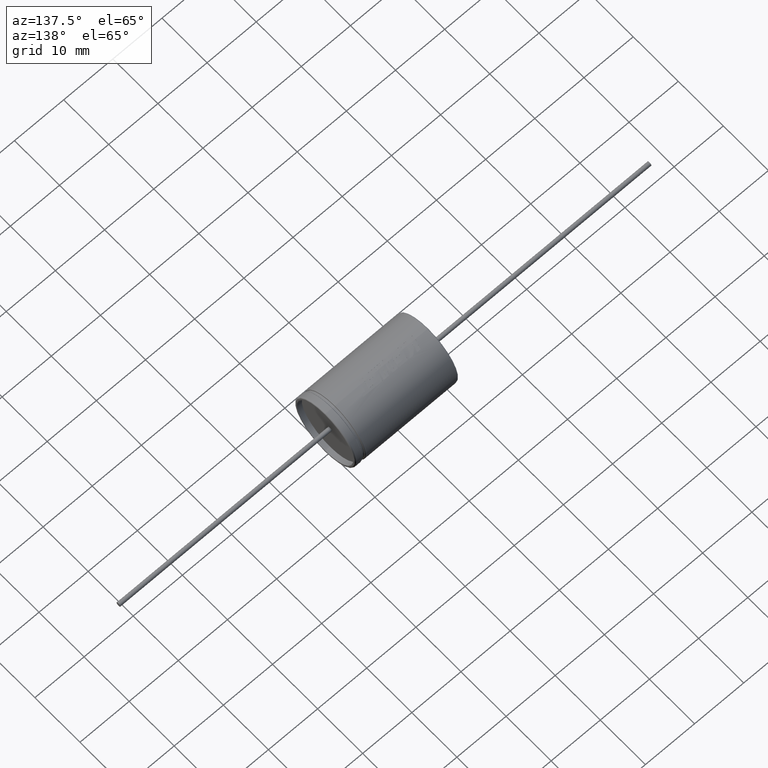
[diagram: clean part render]
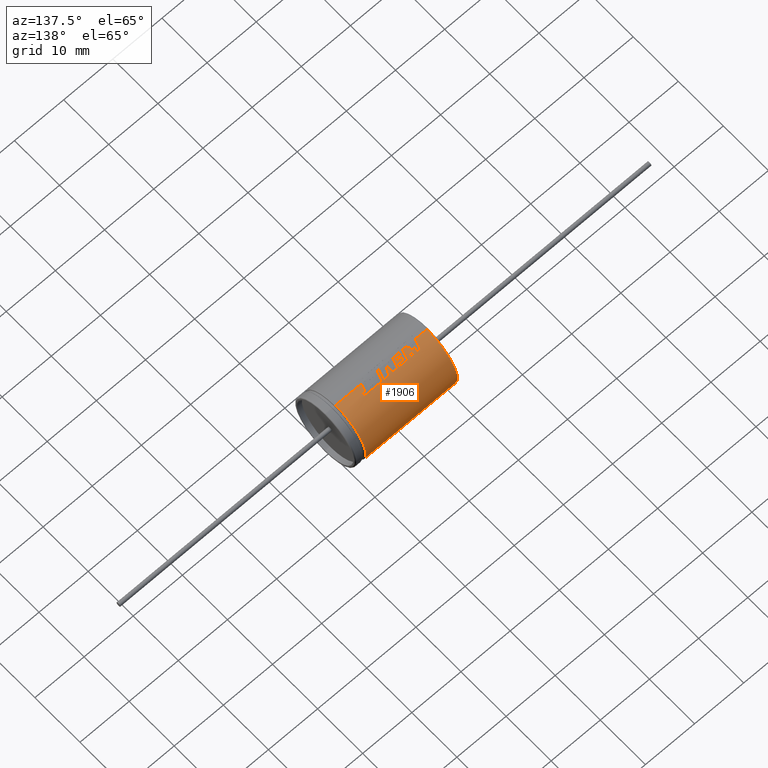
[diagram: same view with one face highlighted and labeled with its STEP entity id]
A machine part, auxiliary view. The second image highlights one B-rep face of the part: STEP entity #1906.
In plain terms, the highlighted cylindrical surface (partial cylindrical patch) has radius 6.75 mm, axis along (-1, -0, -0).
Its self-contained STEP definition (entity closure, byte-faithful):
#6 = DIRECTION ( 'NONE',  ( -1.000000000000000000, 0.0000000000000000000, 0.0000000000000000000 ) ) ;
#10 = CARTESIAN_POINT ( 'NONE',  ( 8.711187493720029100, 0.0000000000000000000, 6.750000000000000000 ) ) ;
#20 = LINE ( 'NONE', #3083, #1112 ) ;
#21 = CARTESIAN_POINT ( 'NONE',  ( 7.773778274860275100, 1.709829298070707300, 6.529853273348416000 ) ) ;
#71 = CARTESIAN_POINT ( 'NONE',  ( 0.2500000000000002200, 8.266365894244632400E-016, -6.750000000000000000 ) ) ;
#84 = DIRECTION ( 'NONE',  ( 0.0000000000000000000, 0.0000000000000000000, -1.000000000000000000 ) ) ;
#90 = EDGE_CURVE ( 'NONE', #1380, #1888, #2674, .T. ) ;
#101 = DIRECTION ( 'NONE',  ( 1.000000000000000000, 0.0000000000000000000, 0.0000000000000000000 ) ) ;
#119 = CARTESIAN_POINT ( 'NONE',  ( 5.970177950344074200, 0.1235678158142156200, 6.749998623335118400 ) ) ;
#132 = DIRECTION ( 'NONE',  ( 1.000000000000000000, 0.0000000000000000000, 0.0000000000000000000 ) ) ;
#152 = CARTESIAN_POINT ( 'NONE',  ( 5.934970038773312400, -3.094374728375643200E-010, 6.749999509999676100 ) ) ;
#218 = CARTESIAN_POINT ( 'NONE',  ( 14.80570776592153900, 1.709829298070707700, 6.529853273348416000 ) ) ;
#232 = B_SPLINE_CURVE_WITH_KNOTS ( 'NONE', 3,
 ( #3673, #4067, #3268, #4456 ),
 .UNSPECIFIED., .F., .F.,
 ( 4, 4 ),
 ( 0.0000000000000000000, 1.000000000000000000 ),
 .UNSPECIFIED. ) ;
#244 = CARTESIAN_POINT ( 'NONE',  ( 3.145739718429844800, 1.709829298070707700, 6.529853273348416000 ) ) ;
#260 = ORIENTED_EDGE ( 'NONE', *, *, #3511, .F. ) ;
#273 = VERTEX_POINT ( 'NONE', #4674 ) ;
#381 = CARTESIAN_POINT ( 'NONE',  ( 7.401614342766223800, 1.260640431870511800, 6.631235608959563900 ) ) ;
#384 = CARTESIAN_POINT ( 'NONE',  ( 4.492146638237773700, 7.379054222907481000E-009, 6.749988029445163700 ) ) ;
#385 = CARTESIAN_POINT ( 'NONE',  ( 10.92132397682916600, 1.709829298070707300, 6.529853273348416000 ) ) ;
#387 = DIRECTION ( 'NONE',  ( -1.000000000000000000, -0.0000000000000000000, -0.0000000000000000000 ) ) ;
#398 = EDGE_CURVE ( 'NONE', #849, #2100, #232, .T. ) ;
#399 = CARTESIAN_POINT ( 'NONE',  ( 2.814542956070161600, 0.5761810244884982800, 6.749670768985733800 ) ) ;
#404 = CARTESIAN_POINT ( 'NONE',  ( 21.00000000000000000, 8.266365894244632400E-016, -6.750000000000000000 ) ) ;
#409 = ORIENTED_EDGE ( 'NONE', *, *, #4316, .F. ) ;
#424 = ORIENTED_EDGE ( 'NONE', *, *, #2171, .F. ) ;
#428 = EDGE_CURVE ( 'NONE', #273, #4451, #4247, .T. ) ;
#433 = CARTESIAN_POINT ( 'NONE',  ( 3.538930942111242500, 0.6955736911496880300, 6.714065626740655500 ) ) ;
#434 = VERTEX_POINT ( 'NONE', #385 ) ;
#438 = CARTESIAN_POINT ( 'NONE',  ( 21.00000000000000000, 0.0000000000000000000, 6.750000000000000000 ) ) ;
#455 = CARTESIAN_POINT ( 'NONE',  ( 4.224495313802124000, 1.377093312771991100, 6.616979539800402300 ) ) ;
#463 = DIRECTION ( 'NONE',  ( -1.000000000000000000, -0.0000000000000000000, -0.0000000000000000000 ) ) ;
#480 = EDGE_CURVE ( 'NONE', #4265, #3480, #2856, .T. ) ;
#552 = AXIS2_PLACEMENT_3D ( 'NONE', #2826, #4335, #4272 ) ;
#559 = EDGE_CURVE ( 'NONE', #1711, #1848, #1693, .T. ) ;
#569 = LINE ( 'NONE', #404, #4356 ) ;
#577 = CARTESIAN_POINT ( 'NONE',  ( 7.532427934271240100, 1.709829298070707700, 6.529853273348416000 ) ) ;
#597 = CARTESIAN_POINT ( 'NONE',  ( 3.834710919933259600, 1.709829298070666400, 6.529853273348427600 ) ) ;
#598 = EDGE_CURVE ( 'NONE', #4451, #2681, #4444, .T. ) ;
#606 = CARTESIAN_POINT ( 'NONE',  ( 14.71618782253709100, 1.407121892397180700, 6.603541944591670500 ) ) ;
#674 = EDGE_CURVE ( 'NONE', #3937, #1020, #1490, .T. ) ;
#677 = ORIENTED_EDGE ( 'NONE', *, *, #1130, .F. ) ;
#682 = ORIENTED_EDGE ( 'NONE', *, *, #834, .F. ) ;
#709 = ORIENTED_EDGE ( 'NONE', *, *, #1143, .T. ) ;
#726 = CARTESIAN_POINT ( 'NONE',  ( 4.610527307575472000, 0.9889710446102997200, 6.687325457481234600 ) ) ;
#728 = CARTESIAN_POINT ( 'NONE',  ( 7.608118555683622800, 1.152292600047412300, 6.675843166401707900 ) ) ;
#736 = CARTESIAN_POINT ( 'NONE',  ( 3.538930942111242500, 0.6955736911496880300, 6.714065626740655500 ) ) ;
#742 = CARTESIAN_POINT ( 'NONE',  ( 4.233994023214352300, 0.6219124879656770000, 6.721288928272042700 ) ) ;
#764 = LINE ( 'NONE', #1431, #3525 ) ;
#778 = LINE ( 'NONE', #2891, #2695 ) ;
#814 = CARTESIAN_POINT ( 'NONE',  ( 3.881717375350309600, 1.037696423185813000, 6.678621890444603100 ) ) ;
#827 = CARTESIAN_POINT ( 'NONE',  ( 5.578950070062960600, 1.152157128400189200, 6.675878639387362600 ) ) ;
#831 = CARTESIAN_POINT ( 'NONE',  ( 10.75550998160453800, 1.152157114677578600, 6.675878642980601200 ) ) ;
#832 = CIRCLE ( 'NONE', #1415, 6.750000000000000000 ) ;
#834 = EDGE_CURVE ( 'NONE', #2029, #3348, #2534, .T. ) ;
#849 = VERTEX_POINT ( 'NONE', #3141 ) ;
#868 = CARTESIAN_POINT ( 'NONE',  ( 6.005385834005072500, 0.2471355415216888700, 6.746606043615953400 ) ) ;
#895 = CARTESIAN_POINT ( 'NONE',  ( 21.00000000000000000, 0.0000000000000000000, 6.750000000000000000 ) ) ;
#901 = B_SPLINE_CURVE_WITH_KNOTS ( 'NONE', 3,
 ( #10, #2236, #3271, #2602 ),
 .UNSPECIFIED., .F., .F.,
 ( 4, 4 ),
 ( 0.0000000000000000000, 1.000000000000000000 ),
 .UNSPECIFIED. ) ;
#918 = EDGE_CURVE ( 'NONE', #4591, #273, #3437, .T. ) ;
#927 = CARTESIAN_POINT ( 'NONE',  ( 12.71760500823164700, 1.709829298070707700, 6.529853273348416000 ) ) ;
#963 = ORIENTED_EDGE ( 'NONE', *, *, #918, .F. ) ;
#964 = ORIENTED_EDGE ( 'NONE', *, *, #2033, .F. ) ;
#974 = ORIENTED_EDGE ( 'NONE', *, *, #4732, .F. ) ;
#984 = CARTESIAN_POINT ( 'NONE',  ( 5.363581895274037900, 1.709829298070707300, 6.529853273348416000 ) ) ;
#1020 = VERTEX_POINT ( 'NONE', #2558 ) ;
#1060 = CARTESIAN_POINT ( 'NONE',  ( 8.997002333856755700, 0.5762776178761770400, 6.750000000000000000 ) ) ;
#1061 = ORIENTED_EDGE ( 'NONE', *, *, #4214, .F. ) ;
#1066 = DIRECTION ( 'NONE',  ( 1.000000000000000000, 0.0000000000000000000, 0.0000000000000000000 ) ) ;
#1112 = VECTOR ( 'NONE', #387, 1000.000000000000000 ) ;
#1113 = CARTESIAN_POINT ( 'NONE',  ( 7.276896142783697600, -7.068100064341374000E-008, 6.749990384737802900 ) ) ;
#1118 = CARTESIAN_POINT ( 'NONE',  ( 7.206777136342198600, 0.8160220341887263200, 6.700493119145671800 ) ) ;
#1130 = EDGE_CURVE ( 'NONE', #2298, #4591, #3129, .T. ) ;
#1138 = ORIENTED_EDGE ( 'NONE', *, *, #2454, .F. ) ;
#1143 = EDGE_CURVE ( 'NONE', #1611, #4525, #1732, .T. ) ;
#1173 = VERTEX_POINT ( 'NONE', #1622 ) ;
#1198 = CARTESIAN_POINT ( 'NONE',  ( 14.00893674567405400, 1.254134721380013400, 6.632469080261819800 ) ) ;
#1211 = CARTESIAN_POINT ( 'NONE',  ( 10.42410111669825800, -4.546704919334922100E-007, 6.749917920589117800 ) ) ;
#1221 = CARTESIAN_POINT ( 'NONE',  ( 6.040593832920111900, 0.3705173747849990800, 6.739823207991618900 ) ) ;
#1237 = LINE ( 'NONE', #927, #3403 ) ;
#1282 = EDGE_CURVE ( 'NONE', #3188, #3878, #2482, .T. ) ;
#1304 = ORIENTED_EDGE ( 'NONE', *, *, #1282, .F. ) ;
#1319 = ORIENTED_EDGE ( 'NONE', *, *, #4063, .F. ) ;
#1357 = B_SPLINE_CURVE_WITH_KNOTS ( 'NONE', 3,
 ( #2067, #3119, #4228, #3499 ),
 .UNSPECIFIED., .F., .F.,
 ( 4, 4 ),
 ( 0.2855566641791651400, 1.000000000000000000 ),
 .UNSPECIFIED. ) ;
#1380 = VERTEX_POINT ( 'NONE', #577 ) ;
#1384 = LINE ( 'NONE', #4538, #4199 ) ;
#1396 = CARTESIAN_POINT ( 'NONE',  ( 7.401614342766223800, 1.260640431870511800, 6.631235608959563900 ) ) ;
#1415 = AXIS2_PLACEMENT_3D ( 'NONE', #2307, #101, #84 ) ;
#1419 = ORIENTED_EDGE ( 'NONE', *, *, #3118, .F. ) ;
#1431 = CARTESIAN_POINT ( 'NONE',  ( 10.62981125708291300, 1.709829298070707700, 6.529853273348416000 ) ) ;
#1490 = LINE ( 'NONE', #4005, #3301 ) ;
#1495 = VECTOR ( 'NONE', #2790, 1000.000000000000000 ) ;
#1501 = CARTESIAN_POINT ( 'NONE',  ( 10.13280915743032500, -4.543329897994637400E-007, 6.749917921406754400 ) ) ;
#1523 = CARTESIAN_POINT ( 'NONE',  ( 4.233994023214352300, 0.6219124879656770000, 6.721288928272042700 ) ) ;
#1578 = EDGE_CURVE ( 'NONE', #3773, #2606, #2132, .T. ) ;
#1602 = DIRECTION ( 'NONE',  ( 0.0000000000000000000, 0.0000000000000000000, -1.000000000000000000 ) ) ;
#1607 = CARTESIAN_POINT ( 'NONE',  ( 10.92132397682916600, 1.709829298070707300, 6.529853273348416000 ) ) ;
#1608 = ORIENTED_EDGE ( 'NONE', *, *, #1733, .T. ) ;
#1611 = VERTEX_POINT ( 'NONE', #4371 ) ;
#1622 = CARTESIAN_POINT ( 'NONE',  ( 5.247397564089324900, -4.550000637449569600E-007, 6.749917919790694200 ) ) ;
#1630 = CARTESIAN_POINT ( 'NONE',  ( 4.567281747041185700, 1.709829298070591400, 6.529853273348447100 ) ) ;
#1648 = ORIENTED_EDGE ( 'NONE', *, *, #398, .F. ) ;
#1661 = EDGE_CURVE ( 'NONE', #2100, #2570, #2700, .T. ) ;
#1667 = ORIENTED_EDGE ( 'NONE', *, *, #2275, .F. ) ;
#1687 = B_SPLINE_CURVE_WITH_KNOTS ( 'NONE', 3,
 ( #4537, #2692, #3457, #4213 ),
 .UNSPECIFIED., .F., .F.,
 ( 4, 4 ),
 ( 0.5259698779780682700, 1.000000000000000000 ),
 .UNSPECIFIED. ) ;
#1693 = B_SPLINE_CURVE_WITH_KNOTS ( 'NONE', 3,
 ( #742, #726, #4395, #2556 ),
 .UNSPECIFIED., .F., .F.,
 ( 4, 4 ),
 ( 0.0000000000000000000, 1.000000000000000000 ),
 .UNSPECIFIED. ) ;
#1711 = VERTEX_POINT ( 'NONE', #1523 ) ;
#1732 = CIRCLE ( 'NONE', #4689, 6.750000000000000000 ) ;
#1733 = EDGE_CURVE ( 'NONE', #4525, #4255, #569, .T. ) ;
#1737 = CARTESIAN_POINT ( 'NONE',  ( 9.568548044013480700, 1.709829298070707300, 6.529853273348416000 ) ) ;
#1759 = VERTEX_POINT ( 'NONE', #3726 ) ;
#1777 = VERTEX_POINT ( 'NONE', #3001 ) ;
#1783 = ORIENTED_EDGE ( 'NONE', *, *, #598, .F. ) ;
#1784 = VERTEX_POINT ( 'NONE', #384 ) ;
#1826 = VERTEX_POINT ( 'NONE', #2179 ) ;
#1848 = VERTEX_POINT ( 'NONE', #984 ) ;
#1888 = VERTEX_POINT ( 'NONE', #3207 ) ;
#1897 = CARTESIAN_POINT ( 'NONE',  ( 7.445218899960960500, 1.411464996591472100, 6.602562891593042800 ) ) ;
#1903 = ORIENTED_EDGE ( 'NONE', *, *, #428, .F. ) ;
#1904 = EDGE_CURVE ( 'NONE', #2570, #1777, #3824, .T. ) ;
#1906 = ADVANCED_FACE ( 'NONE', ( #2850 ), #4575, .T. ) ;
#1915 = CARTESIAN_POINT ( 'NONE',  ( 4.567281747041185700, 1.709829298070591400, 6.529853273348447100 ) ) ;
#1929 = CARTESIAN_POINT ( 'NONE',  ( 5.744835927141265200, 1.709829298070707300, 6.529853273348416000 ) ) ;
#1951 = CARTESIAN_POINT ( 'NONE',  ( 14.67142780739490600, 1.254083042955793400, 6.632478851935431400 ) ) ;
#1955 = CARTESIAN_POINT ( 'NONE',  ( 5.363581895274027300, 1.709829298070707700, 6.529853273348416000 ) ) ;
#1963 = CARTESIAN_POINT ( 'NONE',  ( 5.247397564089324900, -4.550000637449569600E-007, 6.749917919790694200 ) ) ;
#1990 = DIRECTION ( 'NONE',  ( -1.000000000000000000, -1.459581203750584300E-013, 3.812338965020182800E-014 ) ) ;
#1999 = CARTESIAN_POINT ( 'NONE',  ( 7.276896142783697600, -7.068100064341374000E-008, 6.749990384737802900 ) ) ;
#2029 = VERTEX_POINT ( 'NONE', #1951 ) ;
#2033 = EDGE_CURVE ( 'NONE', #4619, #849, #778, .T. ) ;
#2046 = CARTESIAN_POINT ( 'NONE',  ( 7.773778274860275100, 1.709829298070707300, 6.529853273348416000 ) ) ;
#2067 = CARTESIAN_POINT ( 'NONE',  ( 10.13280915743032500, -4.543329897994637400E-007, 6.749917921406754400 ) ) ;
#2077 = CARTESIAN_POINT ( 'NONE',  ( 3.637525746562474200, 1.037698727520219000, 6.678621651716762900 ) ) ;
#2083 = B_SPLINE_CURVE_WITH_KNOTS ( 'NONE', 3,
 ( #4716, #2884, #1060, #3622 ),
 .UNSPECIFIED., .F., .F.,
 ( 4, 4 ),
 ( 0.0000000000000000000, 1.000000000000000000 ),
 .UNSPECIFIED. ) ;
#2100 = VERTEX_POINT ( 'NONE', #4113 ) ;
#2132 = B_SPLINE_CURVE_WITH_KNOTS ( 'NONE', 3,
 ( #3614, #4767, #3672, #3267 ),
 .UNSPECIFIED., .F., .F.,
 ( 4, 4 ),
 ( 0.3539128224673851500, 1.000000000000000000 ),
 .UNSPECIFIED. ) ;
#2155 = CARTESIAN_POINT ( 'NONE',  ( 14.80570776592153900, 1.709829298070707700, 6.529853273348416000 ) ) ;
#2171 = EDGE_CURVE ( 'NONE', #434, #4265, #4604, .T. ) ;
#2172 = CARTESIAN_POINT ( 'NONE',  ( 18.87500000000000000, 8.266365894244632400E-016, -6.750000000000000000 ) ) ;
#2179 = CARTESIAN_POINT ( 'NONE',  ( 12.71760500823164700, 1.709829298070707700, 6.529853273348416000 ) ) ;
#2197 = CARTESIAN_POINT ( 'NONE',  ( 6.040593832920111900, 0.3705173747849990800, 6.739823207991618900 ) ) ;
#2221 = ORIENTED_EDGE ( 'NONE', *, *, #1904, .F. ) ;
#2236 = CARTESIAN_POINT ( 'NONE',  ( 8.742209427912474200, 0.5762900747070928100, 6.750000000000000000 ) ) ;
#2258 = CARTESIAN_POINT ( 'NONE',  ( 8.804242170828771900, 1.709829298070707700, 6.529853273348416000 ) ) ;
#2275 = EDGE_CURVE ( 'NONE', #1848, #2298, #2304, .T. ) ;
#2298 = VERTEX_POINT ( 'NONE', #1630 ) ;
#2304 = LINE ( 'NONE', #1955, #3128 ) ;
#2307 = CARTESIAN_POINT ( 'NONE',  ( 0.2500000000000002200, 0.0000000000000000000, 0.0000000000000000000 ) ) ;
#2316 = VECTOR ( 'NONE', #4547, 1000.000000000000000 ) ;
#2337 = DIRECTION ( 'NONE',  ( -1.000000000000000000, -0.0000000000000000000, -0.0000000000000000000 ) ) ;
#2378 = CARTESIAN_POINT ( 'NONE',  ( 7.532427934271240100, 1.709829298070707700, 6.529853273348416000 ) ) ;
#2389 = CARTESIAN_POINT ( 'NONE',  ( 13.64635653993422100, -1.344964071327617600E-007, 6.749953841861212400 ) ) ;
#2450 = CARTESIAN_POINT ( 'NONE',  ( 14.76094775077935500, 1.559158447204338300, 6.569306140724172000 ) ) ;
#2454 = EDGE_CURVE ( 'NONE', #1020, #4619, #2495, .T. ) ;
#2472 = ORIENTED_EDGE ( 'NONE', *, *, #4760, .T. ) ;
#2480 = B_SPLINE_CURVE_WITH_KNOTS ( 'NONE', 3,
 ( #1929, #827, #4149, #1963 ),
 .UNSPECIFIED., .F., .F.,
 ( 4, 4 ),
 ( 0.0000000000000000000, 0.7144433323837604500 ),
 .UNSPECIFIED. ) ;
#2482 = LINE ( 'NONE', #4617, #1495 ) ;
#2489 = CARTESIAN_POINT ( 'NONE',  ( 6.168214336758524000, 0.8160220341887262100, 6.700493119145671800 ) ) ;
#2495 = B_SPLINE_CURVE_WITH_KNOTS ( 'NONE', 3,
 ( #152, #119, #868, #1221 ),
 .UNSPECIFIED., .F., .F.,
 ( 4, 4 ),
 ( 0.3835877984435602800, 1.000000000000000000 ),
 .UNSPECIFIED. ) ;
#2508 = ORIENTED_EDGE ( 'NONE', *, *, #90, .F. ) ;
#2521 = VECTOR ( 'NONE', #6, 1000.000000000000000 ) ;
#2534 = B_SPLINE_CURVE_WITH_KNOTS ( 'NONE', 3,
 ( #4550, #606, #2450, #218 ),
 .UNSPECIFIED., .F., .F.,
 ( 4, 4 ),
 ( 0.0000000000000000000, 1.000000000000000000 ),
 .UNSPECIFIED. ) ;
#2556 = CARTESIAN_POINT ( 'NONE',  ( 5.363581895274037900, 1.709829298070707300, 6.529853273348416000 ) ) ;
#2558 = CARTESIAN_POINT ( 'NONE',  ( 5.934970038773312400, -3.094374728375643200E-010, 6.749999509999676100 ) ) ;
#2570 = VERTEX_POINT ( 'NONE', #4486 ) ;
#2588 = CARTESIAN_POINT ( 'NONE',  ( 2.648953121698235200, -4.540036335704745300E-007, 6.749917922204657500 ) ) ;
#2602 = CARTESIAN_POINT ( 'NONE',  ( 8.804242170828771900, 1.709829298070707700, 6.529853273348416000 ) ) ;
#2606 = VERTEX_POINT ( 'NONE', #1198 ) ;
#2618 = CARTESIAN_POINT ( 'NONE',  ( 10.42410111669825800, -4.546704919334922100E-007, 6.749917920589117800 ) ) ;
#2667 = CARTESIAN_POINT ( 'NONE',  ( 6.299175075160477800, 1.260640431870512200, 6.631235608959563900 ) ) ;
#2674 = LINE ( 'NONE', #2378, #4551 ) ;
#2681 = VERTEX_POINT ( 'NONE', #3095 ) ;
#2692 = CARTESIAN_POINT ( 'NONE',  ( 4.406097390671053700, 0.2075945950099105400, 6.749977637111591400 ) ) ;
#2695 = VECTOR ( 'NONE', #1066, 1000.000000000000000 ) ;
#2700 = LINE ( 'NONE', #1118, #2521 ) ;
#2741 = VECTOR ( 'NONE', #132, 1000.000000000000000 ) ;
#2752 = DIRECTION ( 'NONE',  ( -1.000000000000000000, -0.0000000000000000000, -0.0000000000000000000 ) ) ;
#2762 = B_SPLINE_CURVE_WITH_KNOTS ( 'NONE', 3,
 ( #21, #728, #3279, #1113 ),
 .UNSPECIFIED., .F., .F.,
 ( 4, 4 ),
 ( 0.0000000000000000000, 0.8822775555313534500 ),
 .UNSPECIFIED. ) ;
#2764 = DIRECTION ( 'NONE',  ( -1.000000000000000000, 0.0000000000000000000, 0.0000000000000000000 ) ) ;
#2790 = DIRECTION ( 'NONE',  ( -1.000000000000000000, 0.0000000000000000000, 0.0000000000000000000 ) ) ;
#2807 = CARTESIAN_POINT ( 'NONE',  ( 3.736116115482027900, 1.377091071661183100, 6.616980126630885200 ) ) ;
#2826 = CARTESIAN_POINT ( 'NONE',  ( 21.00000000000000000, 0.0000000000000000000, 0.0000000000000000000 ) ) ;
#2835 = ORIENTED_EDGE ( 'NONE', *, *, #3309, .F. ) ;
#2850 = FACE_OUTER_BOUND ( 'NONE', #3578, .T. ) ;
#2856 = LINE ( 'NONE', #438, #3718 ) ;
#2873 = EDGE_CURVE ( 'NONE', #3878, #3937, #2762, .T. ) ;
#2884 = CARTESIAN_POINT ( 'NONE',  ( 9.282733203876754000, 1.152346588523125400, 6.675829029625021800 ) ) ;
#2886 = LINE ( 'NONE', #895, #3170 ) ;
#2890 = ORIENTED_EDGE ( 'NONE', *, *, #2984, .F. ) ;
#2891 = CARTESIAN_POINT ( 'NONE',  ( 6.040593832920111900, 0.3705173747849990800, 6.739823207991618900 ) ) ;
#2925 = EDGE_CURVE ( 'NONE', #2606, #2029, #4462, .T. ) ;
#2984 = EDGE_CURVE ( 'NONE', #3348, #1826, #1384, .T. ) ;
#3001 = CARTESIAN_POINT ( 'NONE',  ( 6.299175075160477800, 1.260640431870512200, 6.631235608959563900 ) ) ;
#3010 = ORIENTED_EDGE ( 'NONE', *, *, #3790, .F. ) ;
#3044 = VERTEX_POINT ( 'NONE', #1737 ) ;
#3051 = ORIENTED_EDGE ( 'NONE', *, *, #1661, .F. ) ;
#3083 = CARTESIAN_POINT ( 'NONE',  ( 21.00000000000000000, 0.0000000000000000000, 6.750000000000000000 ) ) ;
#3095 = CARTESIAN_POINT ( 'NONE',  ( 2.648953121698235200, -4.540036335704745300E-007, 6.749917922204657500 ) ) ;
#3118 = EDGE_CURVE ( 'NONE', #3044, #4539, #2083, .T. ) ;
#3119 = CARTESIAN_POINT ( 'NONE',  ( 10.29847082395375000, 0.5761810251984663700, 6.749670765847389100 ) ) ;
#3128 = VECTOR ( 'NONE', #1990, 1000.000000000000000 ) ;
#3129 = B_SPLINE_CURVE_WITH_KNOTS ( 'NONE', 3,
 ( #1915, #455, #814, #433 ),
 .UNSPECIFIED., .F., .F.,
 ( 4, 4 ),
 ( 0.0000000000000000000, 1.000000000000000000 ),
 .UNSPECIFIED. ) ;
#3141 = CARTESIAN_POINT ( 'NONE',  ( 7.079009485606810900, 0.3705173747849989700, 6.739823207991618900 ) ) ;
#3170 = VECTOR ( 'NONE', #2337, 1000.000000000000000 ) ;
#3179 = EDGE_CURVE ( 'NONE', #2681, #3428, #3902, .T. ) ;
#3188 = VERTEX_POINT ( 'NONE', #2258 ) ;
#3207 = CARTESIAN_POINT ( 'NONE',  ( 5.744835927141265200, 1.709829298070707300, 6.529853273348416000 ) ) ;
#3231 = ORIENTED_EDGE ( 'NONE', *, *, #3943, .F. ) ;
#3237 = ORIENTED_EDGE ( 'NONE', *, *, #2873, .F. ) ;
#3253 = CARTESIAN_POINT ( 'NONE',  ( 8.711187493720029100, 0.0000000000000000000, 6.750000000000000000 ) ) ;
#3264 = CARTESIAN_POINT ( 'NONE',  ( 0.2500000000000002200, 0.0000000000000000000, 6.750000000000000000 ) ) ;
#3267 = CARTESIAN_POINT ( 'NONE',  ( 14.00893674567405400, 1.254134721380013400, 6.632469080261819800 ) ) ;
#3268 = CARTESIAN_POINT ( 'NONE',  ( 7.164187896244350800, 0.6680091493047820600, 6.718518923106878500 ) ) ;
#3271 = CARTESIAN_POINT ( 'NONE',  ( 8.773220236636332100, 1.152334537963401800, 6.675832185040497400 ) ) ;
#3272 = ORIENTED_EDGE ( 'NONE', *, *, #3179, .F. ) ;
#3279 = CARTESIAN_POINT ( 'NONE',  ( 7.442537563131713400, 0.5762608005597487100, 6.749897390039211400 ) ) ;
#3301 = VECTOR ( 'NONE', #3646, 1000.000000000000000 ) ;
#3308 = ORIENTED_EDGE ( 'NONE', *, *, #674, .F. ) ;
#3309 = EDGE_CURVE ( 'NONE', #3480, #1759, #1357, .T. ) ;
#3348 = VERTEX_POINT ( 'NONE', #2155 ) ;
#3403 = VECTOR ( 'NONE', #3487, 1000.000000000000000 ) ;
#3428 = VERTEX_POINT ( 'NONE', #3264 ) ;
#3437 = B_SPLINE_CURVE_WITH_KNOTS ( 'NONE', 3,
 ( #4282, #2077, #2807, #597 ),
 .UNSPECIFIED., .F., .F.,
 ( 4, 4 ),
 ( 0.0000000000000000000, 1.000000000000000000 ),
 .UNSPECIFIED. ) ;
#3457 = CARTESIAN_POINT ( 'NONE',  ( 4.320047898064379900, 0.4151896927812964700, 6.740416730877217200 ) ) ;
#3480 = VERTEX_POINT ( 'NONE', #1501 ) ;
#3487 = DIRECTION ( 'NONE',  ( -1.000000000000000000, 0.0000000000000000000, 0.0000000000000000000 ) ) ;
#3499 = CARTESIAN_POINT ( 'NONE',  ( 10.62981125708291700, 1.709829298070707700, 6.529853273348416000 ) ) ;
#3511 = EDGE_CURVE ( 'NONE', #4562, #1380, #4054, .T. ) ;
#3525 = VECTOR ( 'NONE', #4695, 1000.000000000000000 ) ;
#3578 = EDGE_LOOP ( 'NONE', ( #709, #1608, #2472, #3272, #1783, #1903, #963, #677, #1667, #3832, #3231, #3958, #1061, #2508, #260, #3649, #2221, #3051, #1648, #964, #1138, #3308, #3237, #1304, #974, #1419, #1319, #2835, #4622, #424, #409, #2890, #682, #4522, #4494, #3010 ) ) ;
#3614 = CARTESIAN_POINT ( 'NONE',  ( 13.64635653993422100, -1.344964071327617600E-007, 6.749953841861212400 ) ) ;
#3622 = CARTESIAN_POINT ( 'NONE',  ( 8.711187493720029100, 0.0000000000000000000, 6.750000000000000000 ) ) ;
#3646 = DIRECTION ( 'NONE',  ( -1.000000000000000000, -0.0000000000000000000, -0.0000000000000000000 ) ) ;
#3649 = ORIENTED_EDGE ( 'NONE', *, *, #4770, .F. ) ;
#3672 = CARTESIAN_POINT ( 'NONE',  ( 13.88805318756099200, 0.8408881826312197800, 6.710609939489845700 ) ) ;
#3673 = CARTESIAN_POINT ( 'NONE',  ( 7.079009485606810900, 0.3705173747849989700, 6.739823207991618900 ) ) ;
#3699 = CARTESIAN_POINT ( 'NONE',  ( 7.488823377076506900, 1.561310630401313800, 6.568742595766734000 ) ) ;
#3718 = VECTOR ( 'NONE', #4491, 1000.000000000000000 ) ;
#3725 = VECTOR ( 'NONE', #4049, 1000.000000000000000 ) ;
#3726 = CARTESIAN_POINT ( 'NONE',  ( 10.62981125708291700, 1.709829298070707700, 6.529853273348416000 ) ) ;
#3744 = CARTESIAN_POINT ( 'NONE',  ( 14.67142780739490600, 1.254083042955793400, 6.632478851935431400 ) ) ;
#3754 = DIRECTION ( 'NONE',  ( -1.000000000000000000, 0.0000000000000000000, 0.0000000000000000000 ) ) ;
#3773 = VERTEX_POINT ( 'NONE', #2389 ) ;
#3790 = EDGE_CURVE ( 'NONE', #1611, #3773, #20, .T. ) ;
#3803 = CARTESIAN_POINT ( 'NONE',  ( 10.58983636784009400, 0.5761810259259980700, 6.749670762631432700 ) ) ;
#3824 = B_SPLINE_CURVE_WITH_KNOTS ( 'NONE', 3,
 ( #2489, #3907, #4639, #4313 ),
 .UNSPECIFIED., .F., .F.,
 ( 4, 4 ),
 ( 0.0000000000000000000, 1.000000000000000000 ),
 .UNSPECIFIED. ) ;
#3832 = ORIENTED_EDGE ( 'NONE', *, *, #559, .F. ) ;
#3878 = VERTEX_POINT ( 'NONE', #2046 ) ;
#3902 = LINE ( 'NONE', #4529, #2316 ) ;
#3907 = CARTESIAN_POINT ( 'NONE',  ( 6.211867940509166400, 0.9649429753475060600, 6.682356727214986400 ) ) ;
#3918 = EDGE_CURVE ( 'NONE', #1173, #1784, #2886, .T. ) ;
#3937 = VERTEX_POINT ( 'NONE', #1999 ) ;
#3943 = EDGE_CURVE ( 'NONE', #1784, #1711, #1687, .T. ) ;
#3958 = ORIENTED_EDGE ( 'NONE', *, *, #3918, .F. ) ;
#4005 = CARTESIAN_POINT ( 'NONE',  ( 21.00000000000000000, 0.0000000000000000000, 6.750000000000000000 ) ) ;
#4049 = DIRECTION ( 'NONE',  ( -1.000000000000000000, 5.948411491006182900E-014, -1.510707680255538300E-014 ) ) ;
#4054 = B_SPLINE_CURVE_WITH_KNOTS ( 'NONE', 3,
 ( #381, #1897, #3699, #4450 ),
 .UNSPECIFIED., .F., .F.,
 ( 4, 4 ),
 ( 0.0000000000000000000, 1.000000000000000000 ),
 .UNSPECIFIED. ) ;
#4063 = EDGE_CURVE ( 'NONE', #1759, #3044, #764, .T. ) ;
#4067 = CARTESIAN_POINT ( 'NONE',  ( 7.121598725704662200, 0.5193990554141684200, 6.731638534928548800 ) ) ;
#4085 = CARTESIAN_POINT ( 'NONE',  ( 14.00893674567405400, 1.254134721380013400, 6.632469080261819800 ) ) ;
#4113 = CARTESIAN_POINT ( 'NONE',  ( 7.206777136342198600, 0.8160220341887263200, 6.700493119145671800 ) ) ;
#4149 = CARTESIAN_POINT ( 'NONE',  ( 5.413204647383439600, 0.5761810266364303400, 6.749670759491046100 ) ) ;
#4180 = CARTESIAN_POINT ( 'NONE',  ( 18.87500000000000000, 0.0000000000000000000, 0.0000000000000000000 ) ) ;
#4199 = VECTOR ( 'NONE', #3754, 1000.000000000000000 ) ;
#4213 = CARTESIAN_POINT ( 'NONE',  ( 4.233994023214352300, 0.6219124879656770000, 6.721288928272042700 ) ) ;
#4214 = EDGE_CURVE ( 'NONE', #1888, #1173, #2480, .T. ) ;
#4228 = CARTESIAN_POINT ( 'NONE',  ( 10.46407087690816700, 1.152157100624745500, 6.675878646660308400 ) ) ;
#4247 = LINE ( 'NONE', #4768, #3725 ) ;
#4255 = VERTEX_POINT ( 'NONE', #71 ) ;
#4265 = VERTEX_POINT ( 'NONE', #2618 ) ;
#4272 = DIRECTION ( 'NONE',  ( 0.0000000000000000000, 0.0000000000000000000, 1.000000000000000000 ) ) ;
#4282 = CARTESIAN_POINT ( 'NONE',  ( 3.538930942111242500, 0.6955736911496880300, 6.714065626740655500 ) ) ;
#4313 = CARTESIAN_POINT ( 'NONE',  ( 6.299175075160477800, 1.260640431870512200, 6.631235608959563900 ) ) ;
#4316 = EDGE_CURVE ( 'NONE', #1826, #434, #1237, .T. ) ;
#4335 = DIRECTION ( 'NONE',  ( -1.000000000000000000, -0.0000000000000000000, -0.0000000000000000000 ) ) ;
#4356 = VECTOR ( 'NONE', #463, 1000.000000000000000 ) ;
#4371 = CARTESIAN_POINT ( 'NONE',  ( 18.87500000000000000, 0.0000000000000000000, 6.750000000000000000 ) ) ;
#4379 = CARTESIAN_POINT ( 'NONE',  ( 3.145739718429844800, 1.709829298070707700, 6.529853273348416000 ) ) ;
#4395 = CARTESIAN_POINT ( 'NONE',  ( 4.987048610912919100, 1.353225297975650500, 6.623229332755502500 ) ) ;
#4398 = CARTESIAN_POINT ( 'NONE',  ( 14.22976709958100500, 1.254117495251296600, 6.632472337553466900 ) ) ;
#4444 = B_SPLINE_CURVE_WITH_KNOTS ( 'NONE', 3,
 ( #4379, #4762, #399, #2588 ),
 .UNSPECIFIED., .F., .F.,
 ( 4, 4 ),
 ( 0.0000000000000000000, 0.7144433375178228500 ),
 .UNSPECIFIED. ) ;
#4450 = CARTESIAN_POINT ( 'NONE',  ( 7.532427934271240100, 1.709829298070707700, 6.529853273348416000 ) ) ;
#4451 = VERTEX_POINT ( 'NONE', #244 ) ;
#4456 = CARTESIAN_POINT ( 'NONE',  ( 7.206777136342198600, 0.8160220341887263200, 6.700493119145671800 ) ) ;
#4462 = B_SPLINE_CURVE_WITH_KNOTS ( 'NONE', 3,
 ( #4085, #4398, #4764, #3744 ),
 .UNSPECIFIED., .F., .F.,
 ( 4, 4 ),
 ( 0.0000000000000000000, 1.000000000000000000 ),
 .UNSPECIFIED. ) ;
#4486 = CARTESIAN_POINT ( 'NONE',  ( 6.168214336758524000, 0.8160220341887262100, 6.700493119145671800 ) ) ;
#4491 = DIRECTION ( 'NONE',  ( -1.000000000000000000, -0.0000000000000000000, -0.0000000000000000000 ) ) ;
#4494 = ORIENTED_EDGE ( 'NONE', *, *, #1578, .F. ) ;
#4522 = ORIENTED_EDGE ( 'NONE', *, *, #2925, .F. ) ;
#4525 = VERTEX_POINT ( 'NONE', #2172 ) ;
#4529 = CARTESIAN_POINT ( 'NONE',  ( 21.00000000000000000, 0.0000000000000000000, 6.750000000000000000 ) ) ;
#4537 = CARTESIAN_POINT ( 'NONE',  ( 4.492146638237773700, 7.379054222907481000E-009, 6.749988029445163700 ) ) ;
#4538 = CARTESIAN_POINT ( 'NONE',  ( 14.80570776592153900, 1.709829298070707700, 6.529853273348416000 ) ) ;
#4539 = VERTEX_POINT ( 'NONE', #3253 ) ;
#4547 = DIRECTION ( 'NONE',  ( -1.000000000000000000, -0.0000000000000000000, -0.0000000000000000000 ) ) ;
#4550 = CARTESIAN_POINT ( 'NONE',  ( 14.67142780739490600, 1.254083042955793400, 6.632478851935431400 ) ) ;
#4551 = VECTOR ( 'NONE', #2764, 1000.000000000000000 ) ;
#4562 = VERTEX_POINT ( 'NONE', #1396 ) ;
#4575 = CYLINDRICAL_SURFACE ( 'NONE', #552, 6.750000000000000000 ) ;
#4591 = VERTEX_POINT ( 'NONE', #736 ) ;
#4604 = B_SPLINE_CURVE_WITH_KNOTS ( 'NONE', 3,
 ( #1607, #831, #3803, #1211 ),
 .UNSPECIFIED., .F., .F.,
 ( 4, 4 ),
 ( 0.0000000000000000000, 0.7144433340818680000 ),
 .UNSPECIFIED. ) ;
#4617 = CARTESIAN_POINT ( 'NONE',  ( 8.804242170828771900, 1.709829298070707700, 6.529853273348416000 ) ) ;
#4619 = VERTEX_POINT ( 'NONE', #2197 ) ;
#4622 = ORIENTED_EDGE ( 'NONE', *, *, #480, .F. ) ;
#4639 = CARTESIAN_POINT ( 'NONE',  ( 6.255521471409837300, 1.113258764525737200, 6.659253809447008600 ) ) ;
#4674 = CARTESIAN_POINT ( 'NONE',  ( 3.834710919933259600, 1.709829298070666400, 6.529853273348427600 ) ) ;
#4679 = LINE ( 'NONE', #2667, #2741 ) ;
#4689 = AXIS2_PLACEMENT_3D ( 'NONE', #4180, #2752, #1602 ) ;
#4695 = DIRECTION ( 'NONE',  ( -1.000000000000000000, 0.0000000000000000000, 0.0000000000000000000 ) ) ;
#4716 = CARTESIAN_POINT ( 'NONE',  ( 9.568548044013480700, 1.709829298070707300, 6.529853273348416000 ) ) ;
#4732 = EDGE_CURVE ( 'NONE', #4539, #3188, #901, .T. ) ;
#4760 = EDGE_CURVE ( 'NONE', #4255, #3428, #832, .T. ) ;
#4762 = CARTESIAN_POINT ( 'NONE',  ( 2.980071200118633400, 1.152157086911049800, 6.675878650251212000 ) ) ;
#4764 = CARTESIAN_POINT ( 'NONE',  ( 14.45059745348795700, 1.254100269109890100, 6.632475594778005000 ) ) ;
#4767 = CARTESIAN_POINT ( 'NONE',  ( 13.76721114455483700, 0.4204642488841002200, 6.749856720441815800 ) ) ;
#4768 = CARTESIAN_POINT ( 'NONE',  ( 3.834710919933252500, 1.709829298070666600, 6.529853273348426700 ) ) ;
#4770 = EDGE_CURVE ( 'NONE', #1777, #4562, #4679, .T. ) ;